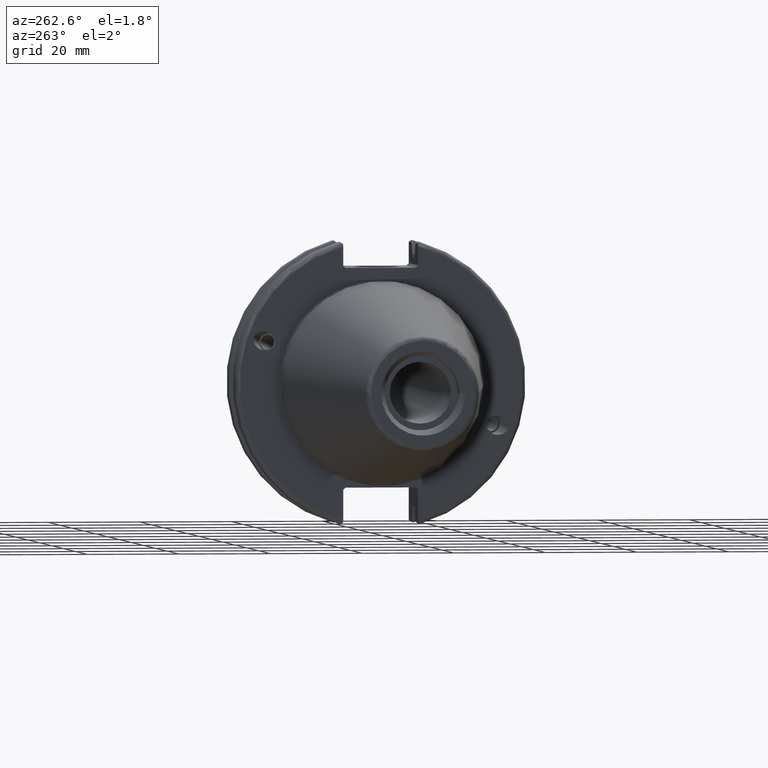
[diagram: clean part render]
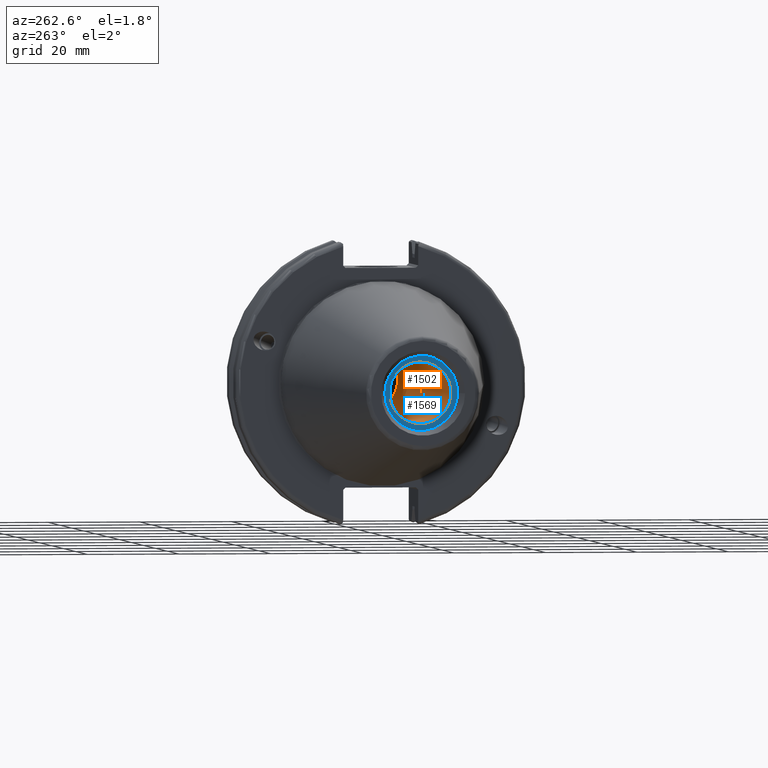
[diagram: same view with the hole feature highlighted: cylindrical wall and planar end face, labeled with their STEP entity ids]
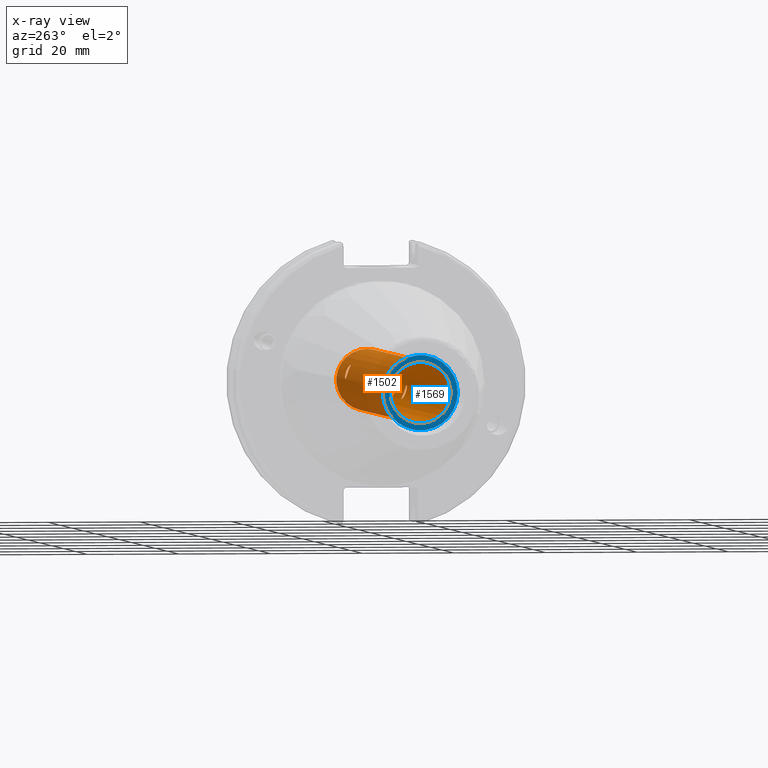
[diagram: x-ray of the same camera — body ghosted, the hole faces saturated]
A machine part, auxiliary view. The highlighted faces form one hole feature of diameter 13.3858 mm: the cylindrical wall (entity #1502, orange) and its adjacent planar end face (entity #1569, blue) — they share a circular edge in the B-rep.
The next image is the same camera in x-ray (body ghosted, the hole faces saturated) — the bore reads through the body.
Wall:
#66=B_SPLINE_CURVE_WITH_KNOTS('',3,(#2398,#2399,#2400,#2401,#2402,#2403,
#2404,#2405,#2406,#2407,#2408,#2409,#2410,#2411,#2412,#2413,#2414,#2415,
#2416,#2417,#2418,#2419,#2420,#2421,#2422,#2423),.UNSPECIFIED.,.F.,.F.,
(4,2,2,2,2,2,2,2,2,2,2,2,4),(0.,0.0613281361392536,0.122656272278507,0.183976883359658,
0.245297494440808,0.306618105521959,0.36793871660311,0.429266852742363,
0.490594988881616,0.55192312502087,0.613251261160123,0.674571872241274,
0.735892483322424),.UNSPECIFIED.);
#67=B_SPLINE_CURVE_WITH_KNOTS('',3,(#2424,#2425,#2426,#2427,#2428,#2429,
#2430,#2431,#2432,#2433),.UNSPECIFIED.,.F.,.F.,(4,2,2,2,4),(0.735892483322424,
0.797213094403575,0.858533705484726,0.919861841623979,0.981189977763232),
 .UNSPECIFIED.);
#68=B_SPLINE_CURVE_WITH_KNOTS('',3,(#2436,#2437,#2438,#2439,#2440,#2441,
#2442,#2443,#2444,#2445,#2446,#2447,#2448,#2449,#2450,#2451,#2452,#2453,
#2454,#2455,#2456,#2457,#2458,#2459,#2460,#2461),.UNSPECIFIED.,.F.,.F.,
(4,2,2,2,2,2,2,2,2,2,2,2,4),(0.,0.0613281361392536,0.122656272278507,0.183976883359658,
0.245297494440808,0.306618105521959,0.36793871660311,0.429266852742363,
0.490594988881617,0.55192312502087,0.613251261160123,0.674571872241274,
0.735892483322425),.UNSPECIFIED.);
#69=B_SPLINE_CURVE_WITH_KNOTS('',3,(#2462,#2463,#2464,#2465,#2466,#2467,
#2468,#2469,#2470,#2471),.UNSPECIFIED.,.F.,.F.,(4,2,2,2,4),(0.735892483322425,
0.797213094403575,0.858533705484726,0.919861841623979,0.981189977763233),
 .UNSPECIFIED.);
#112=LINE('',#2395,#204);
#204=VECTOR('',#1868,6.6929);
#283=CYLINDRICAL_SURFACE('',#1633,6.6929);
#311=FACE_BOUND('',#460,.T.);
#312=FACE_BOUND('',#461,.T.);
#370=FACE_OUTER_BOUND('',#459,.T.);
#459=EDGE_LOOP('',(#1083,#1084,#1085,#1086));
#460=EDGE_LOOP('',(#1087,#1088));
#461=EDGE_LOOP('',(#1089,#1090));
#566=CIRCLE('',#1632,6.6929);
#567=CIRCLE('',#1634,6.6929);
#651=VERTEX_POINT('',#2389);
#652=VERTEX_POINT('',#2393);
#653=VERTEX_POINT('',#2396);
#654=VERTEX_POINT('',#2397);
#655=VERTEX_POINT('',#2434);
#656=VERTEX_POINT('',#2435);
#816=EDGE_CURVE('',#651,#651,#566,.T.);
#818=EDGE_CURVE('',#652,#652,#567,.T.);
#819=EDGE_CURVE('',#652,#651,#112,.T.);
#820=EDGE_CURVE('',#653,#654,#66,.T.);
#821=EDGE_CURVE('',#654,#653,#67,.T.);
#822=EDGE_CURVE('',#655,#656,#68,.T.);
#823=EDGE_CURVE('',#656,#655,#69,.T.);
#1083=ORIENTED_EDGE('',*,*,#818,.F.);
#1084=ORIENTED_EDGE('',*,*,#819,.T.);
#1085=ORIENTED_EDGE('',*,*,#816,.F.);
#1086=ORIENTED_EDGE('',*,*,#819,.F.);
#1087=ORIENTED_EDGE('',*,*,#820,.F.);
#1088=ORIENTED_EDGE('',*,*,#821,.F.);
#1089=ORIENTED_EDGE('',*,*,#822,.F.);
#1090=ORIENTED_EDGE('',*,*,#823,.F.);
#1502=ADVANCED_FACE('',(#370,#311,#312),#283,.F.);
#1632=AXIS2_PLACEMENT_3D('',#2390,#1861,#1862);
#1633=AXIS2_PLACEMENT_3D('',#2392,#1864,#1865);
#1634=AXIS2_PLACEMENT_3D('',#2394,#1866,#1867);
#1861=DIRECTION('center_axis',(-1.,0.,0.));
#1862=DIRECTION('ref_axis',(0.,0.,1.));
#1864=DIRECTION('center_axis',(-1.,0.,0.));
#1865=DIRECTION('ref_axis',(0.,0.,1.));
#1866=DIRECTION('center_axis',(1.,0.,0.));
#1867=DIRECTION('ref_axis',(0.,0.,1.));
#1868=DIRECTION('',(1.,0.,0.));
#2389=CARTESIAN_POINT('',(26.29,-8.19643856201333E-16,-6.6929));
#2390=CARTESIAN_POINT('Origin',(26.29,0.,0.));
#2392=CARTESIAN_POINT('Origin',(-20.98,0.,0.));
#2393=CARTESIAN_POINT('',(-63.45,8.19643856201332E-16,-6.6929));
#2394=CARTESIAN_POINT('Origin',(-63.45,0.,0.));
#2395=CARTESIAN_POINT('',(-20.98,-8.19643856201332E-16,-6.6929));
#2396=CARTESIAN_POINT('',(11.1341,-6.65643365521149,-0.697711547681303));
#2397=CARTESIAN_POINT('',(9.5131,-6.28926874165801,-2.28910661726437));
#2398=CARTESIAN_POINT('Ctrl Pts',(11.1341,-6.65643365521149,-0.697711547681303));
#2399=CARTESIAN_POINT('Ctrl Pts',(11.3385271204642,-6.65643365521149,-0.697711547681303));
#2400=CARTESIAN_POINT('Ctrl Pts',(11.5559966151745,-6.65241872830876,-0.739904750929788));
#2401=CARTESIAN_POINT('Ctrl Pts',(11.9551199575703,-6.63148496397672,-0.908592848123728));
#2402=CARTESIAN_POINT('Ctrl Pts',(12.1368480110646,-6.6140166083086,-1.03484342994688));
#2403=CARTESIAN_POINT('Ctrl Pts',(12.4237745692937,-6.5627497245329,-1.32152467584939));
#2404=CARTESIAN_POINT('Ctrl Pts',(12.5483995766669,-6.52541782463157,-1.501335759233));
#2405=CARTESIAN_POINT('Ctrl Pts',(12.7140843222182,-6.42387889335004,-1.88914446481651));
#2406=CARTESIAN_POINT('Ctrl Pts',(12.7551,-6.35917835562732,-2.0970315314809));
#2407=CARTESIAN_POINT('Ctrl Pts',(12.7551,-6.2193591276887,-2.48118170304783));
#2408=CARTESIAN_POINT('Ctrl Pts',(12.7140843222182,-6.13529538441205,-2.68202113925062));
#2409=CARTESIAN_POINT('Ctrl Pts',(12.5483995766669,-5.96380008760285,-3.04436781008461));
#2410=CARTESIAN_POINT('Ctrl Pts',(12.4237745692937,-5.87681764559004,-3.20610757402446));
#2411=CARTESIAN_POINT('Ctrl Pts',(12.1368480110646,-5.73181520422682,-3.45867186707276));
#2412=CARTESIAN_POINT('Ctrl Pts',(11.9551199575703,-5.66404443130516,-3.566613866304));
#2413=CARTESIAN_POINT('Ctrl Pts',(11.5559966151745,-5.57165000636742,-3.70929241011646));
#2414=CARTESIAN_POINT('Ctrl Pts',(11.3385271204642,-5.54760435054967,-3.74419502426922));
#2415=CARTESIAN_POINT('Ctrl Pts',(10.9296728795358,-5.54760435054967,-3.74419502426922));
#2416=CARTESIAN_POINT('Ctrl Pts',(10.7122033848255,-5.57165000636742,-3.70929241011646));
#2417=CARTESIAN_POINT('Ctrl Pts',(10.3130800424297,-5.66404443130516,-3.566613866304));
#2418=CARTESIAN_POINT('Ctrl Pts',(10.1313519889354,-5.73181520422682,-3.45867186707276));
#2419=CARTESIAN_POINT('Ctrl Pts',(9.84442543070629,-5.87681764559004,-3.20610757402446));
#2420=CARTESIAN_POINT('Ctrl Pts',(9.71980042333311,-5.96380008760285,-3.04436781008461));
#2421=CARTESIAN_POINT('Ctrl Pts',(9.55411567778177,-6.13529538441205,-2.68202113925061));
#2422=CARTESIAN_POINT('Ctrl Pts',(9.5131,-6.2193591276887,-2.48118170304783));
#2423=CARTESIAN_POINT('Ctrl Pts',(9.5131,-6.28926874165801,-2.28910661726437));
#2424=CARTESIAN_POINT('Ctrl Pts',(9.5131,-6.28926874165801,-2.28910661726437));
#2425=CARTESIAN_POINT('Ctrl Pts',(9.5131,-6.35917835562732,-2.0970315314809));
#2426=CARTESIAN_POINT('Ctrl Pts',(9.55411567778177,-6.42387889335004,-1.88914446481651));
#2427=CARTESIAN_POINT('Ctrl Pts',(9.71980042333312,-6.52541782463156,-1.501335759233));
#2428=CARTESIAN_POINT('Ctrl Pts',(9.84442543070629,-6.5627497245329,-1.32152467584939));
#2429=CARTESIAN_POINT('Ctrl Pts',(10.1313519889354,-6.6140166083086,-1.03484342994688));
#2430=CARTESIAN_POINT('Ctrl Pts',(10.3130800424297,-6.63148496397672,-0.908592848123726));
#2431=CARTESIAN_POINT('Ctrl Pts',(10.7122033848255,-6.65241872830876,-0.739904750929788));
#2432=CARTESIAN_POINT('Ctrl Pts',(10.9296728795358,-6.65643365521149,-0.697711547681303));
#2433=CARTESIAN_POINT('Ctrl Pts',(11.1341,-6.65643365521149,-0.697711547681303));
#2434=CARTESIAN_POINT('',(11.1341,6.65643365521149,0.697711547681304));
#2435=CARTESIAN_POINT('',(9.5131,6.28926874165801,2.28910661726437));
#2436=CARTESIAN_POINT('Ctrl Pts',(11.1341,6.65643365521149,0.697711547681304));
#2437=CARTESIAN_POINT('Ctrl Pts',(11.3385271204642,6.65643365521149,0.697711547681304));
#2438=CARTESIAN_POINT('Ctrl Pts',(11.5559966151745,6.65241872830876,0.73990475092979));
#2439=CARTESIAN_POINT('Ctrl Pts',(11.9551199575703,6.63148496397672,0.90859284812373));
#2440=CARTESIAN_POINT('Ctrl Pts',(12.1368480110646,6.6140166083086,1.03484342994688));
#2441=CARTESIAN_POINT('Ctrl Pts',(12.4237745692937,6.5627497245329,1.32152467584939));
#2442=CARTESIAN_POINT('Ctrl Pts',(12.5483995766669,6.52541782463156,1.501335759233));
#2443=CARTESIAN_POINT('Ctrl Pts',(12.7140843222182,6.42387889335004,1.88914446481652));
#2444=CARTESIAN_POINT('Ctrl Pts',(12.7551,6.35917835562732,2.0970315314809));
#2445=CARTESIAN_POINT('Ctrl Pts',(12.7551,6.2193591276887,2.48118170304783));
#2446=CARTESIAN_POINT('Ctrl Pts',(12.7140843222182,6.13529538441206,2.68202113925062));
#2447=CARTESIAN_POINT('Ctrl Pts',(12.5483995766669,5.96380008760285,3.04436781008461));
#2448=CARTESIAN_POINT('Ctrl Pts',(12.4237745692937,5.87681764559004,3.20610757402446));
#2449=CARTESIAN_POINT('Ctrl Pts',(12.1368480110646,5.73181520422681,3.45867186707277));
#2450=CARTESIAN_POINT('Ctrl Pts',(11.9551199575703,5.66404443130516,3.566613866304));
#2451=CARTESIAN_POINT('Ctrl Pts',(11.5559966151745,5.57165000636742,3.70929241011646));
#2452=CARTESIAN_POINT('Ctrl Pts',(11.3385271204642,5.54760435054967,3.74419502426922));
#2453=CARTESIAN_POINT('Ctrl Pts',(10.9296728795358,5.54760435054967,3.74419502426922));
#2454=CARTESIAN_POINT('Ctrl Pts',(10.7122033848255,5.57165000636742,3.70929241011646));
#2455=CARTESIAN_POINT('Ctrl Pts',(10.3130800424297,5.66404443130516,3.566613866304));
#2456=CARTESIAN_POINT('Ctrl Pts',(10.1313519889354,5.73181520422681,3.45867186707276));
#2457=CARTESIAN_POINT('Ctrl Pts',(9.84442543070629,5.87681764559004,3.20610757402446));
#2458=CARTESIAN_POINT('Ctrl Pts',(9.71980042333312,5.96380008760285,3.04436781008461));
#2459=CARTESIAN_POINT('Ctrl Pts',(9.55411567778177,6.13529538441205,2.68202113925062));
#2460=CARTESIAN_POINT('Ctrl Pts',(9.5131,6.2193591276887,2.48118170304783));
#2461=CARTESIAN_POINT('Ctrl Pts',(9.5131,6.28926874165801,2.28910661726437));
#2462=CARTESIAN_POINT('Ctrl Pts',(9.5131,6.28926874165801,2.28910661726437));
#2463=CARTESIAN_POINT('Ctrl Pts',(9.5131,6.35917835562732,2.0970315314809));
#2464=CARTESIAN_POINT('Ctrl Pts',(9.55411567778177,6.42387889335004,1.88914446481651));
#2465=CARTESIAN_POINT('Ctrl Pts',(9.71980042333312,6.52541782463156,1.501335759233));
#2466=CARTESIAN_POINT('Ctrl Pts',(9.84442543070629,6.5627497245329,1.32152467584939));
#2467=CARTESIAN_POINT('Ctrl Pts',(10.1313519889354,6.6140166083086,1.03484342994688));
#2468=CARTESIAN_POINT('Ctrl Pts',(10.3130800424297,6.63148496397672,0.908592848123728));
#2469=CARTESIAN_POINT('Ctrl Pts',(10.7122033848255,6.65241872830876,0.73990475092979));
#2470=CARTESIAN_POINT('Ctrl Pts',(10.9296728795358,6.65643365521149,0.697711547681305));
#2471=CARTESIAN_POINT('Ctrl Pts',(11.1341,6.65643365521149,0.697711547681305));
End face:
#322=FACE_BOUND('',#538,.T.);
#356=PLANE('',#1767);
#437=FACE_OUTER_BOUND('',#537,.T.);
#537=EDGE_LOOP('',(#1454));
#538=EDGE_LOOP('',(#1455));
#567=CIRCLE('',#1634,6.6929);
#616=CIRCLE('',#1768,8.14999999999999);
#652=VERTEX_POINT('',#2393);
#773=VERTEX_POINT('',#3071);
#818=EDGE_CURVE('',#652,#652,#567,.T.);
#1004=EDGE_CURVE('',#773,#773,#616,.T.);
#1454=ORIENTED_EDGE('',*,*,#1004,.F.);
#1455=ORIENTED_EDGE('',*,*,#818,.T.);
#1569=ADVANCED_FACE('',(#437,#322),#356,.T.);
#1634=AXIS2_PLACEMENT_3D('',#2394,#1866,#1867);
#1767=AXIS2_PLACEMENT_3D('',#3070,#2205,#2206);
#1768=AXIS2_PLACEMENT_3D('',#3072,#2207,#2208);
#1866=DIRECTION('center_axis',(1.,0.,0.));
#1867=DIRECTION('ref_axis',(0.,0.,1.));
#2205=DIRECTION('center_axis',(-1.,0.,0.));
#2206=DIRECTION('ref_axis',(0.,0.,1.));
#2207=DIRECTION('center_axis',(1.,0.,0.));
#2208=DIRECTION('ref_axis',(0.,0.,-1.));
#2393=CARTESIAN_POINT('',(-63.45,8.19643856201332E-16,-6.6929));
#2394=CARTESIAN_POINT('Origin',(-63.45,0.,0.));
#3070=CARTESIAN_POINT('Origin',(-63.45,8.14999999999999,0.));
#3071=CARTESIAN_POINT('',(-63.45,-8.14999999999999,-9.98087141305092E-16));
#3072=CARTESIAN_POINT('Origin',(-63.45,0.,0.));